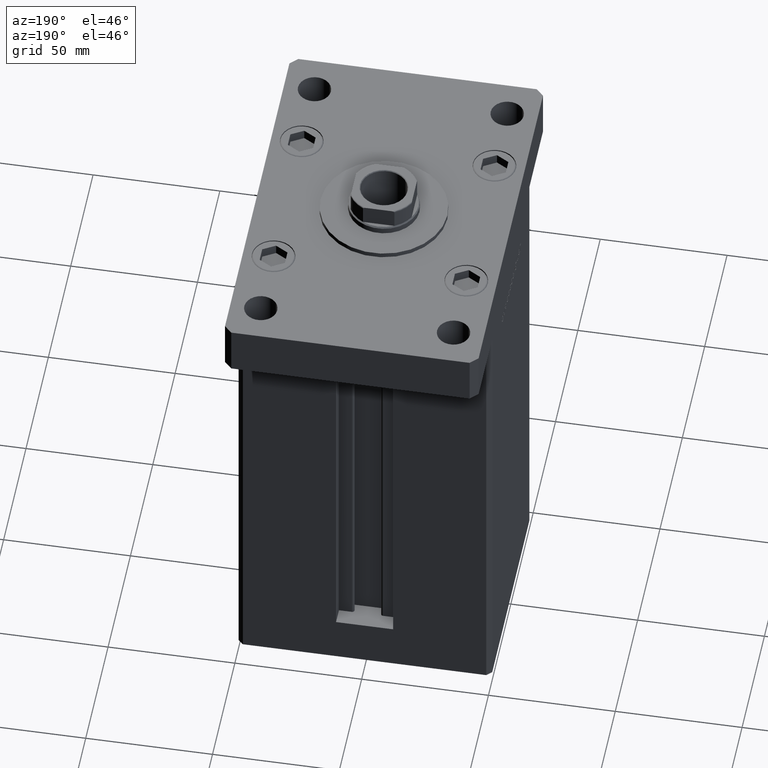
[diagram: clean part render]
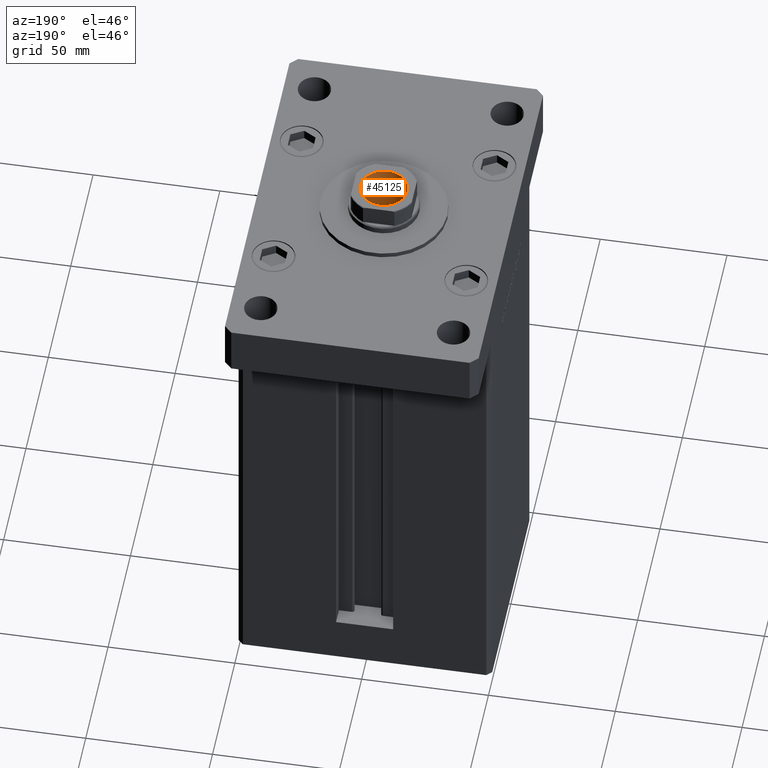
[diagram: same view with one face highlighted and labeled with its STEP entity id]
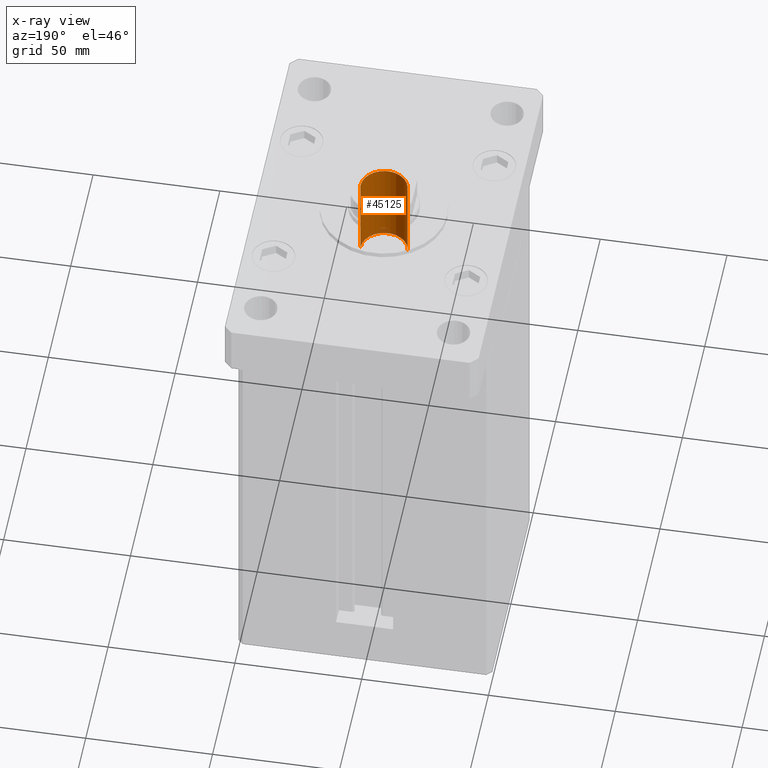
[diagram: x-ray of the same camera — body ghosted, the highlighted face saturated]
A machine part, auxiliary view. The second image highlights one B-rep face of the part: STEP entity #45125.
The next image is the same camera in x-ray: the body ghosted, the highlighted face saturated — about 3% of this face is hidden behind the body in this view.
In plain terms, the highlighted cylindrical surface (edge-blend (fillet) strip) has radius 9.25 mm, axis along (0, 0, 1).
Its self-contained STEP definition (entity closure, byte-faithful):
#1790 = AXIS2_PLACEMENT_3D ( 'NONE', #52300, #14931, #28531 ) ;
#3793 = VERTEX_POINT ( 'NONE', #53673 ) ;
#3910 = ORIENTED_EDGE ( 'NONE', *, *, #53916, .T. ) ;
#3933 = VERTEX_POINT ( 'NONE', #47099 ) ;
#4011 = VECTOR ( 'NONE', #8504, 1000.000000000000000 ) ;
#4820 = ORIENTED_EDGE ( 'NONE', *, *, #42330, .F. ) ;
#5355 = AXIS2_PLACEMENT_3D ( 'NONE', #15889, #24336, #16159 ) ;
#8504 = DIRECTION ( 'NONE',  ( -0.000000000000000000, -0.000000000000000000, 1.000000000000000000 ) ) ;
#9117 = ORIENTED_EDGE ( 'NONE', *, *, #9691, .T. ) ;
#9691 = EDGE_CURVE ( 'NONE', #50435, #3793, #32328, .T. ) ;
#12189 = CARTESIAN_POINT ( 'NONE',  ( 9.249999999999994671, 0.000000000000000000, 150.2500000000000000 ) ) ;
#14907 = AXIS2_PLACEMENT_3D ( 'NONE', #38363, #43003, #35347 ) ;
#14931 = DIRECTION ( 'NONE',  ( -0.000000000000000000, -0.000000000000000000, 1.000000000000000000 ) ) ;
#15889 = CARTESIAN_POINT ( 'NONE',  ( 0.000000000000000000, 0.000000000000000000, 185.2500000000000000 ) ) ;
#16159 = DIRECTION ( 'NONE',  ( 1.000000000000000000, 0.000000000000000000, 0.000000000000000000 ) ) ;
#18529 = CARTESIAN_POINT ( 'NONE',  ( -9.249999999999996447, 1.132798289211301304E-15, 184.9499999999999602 ) ) ;
#24336 = DIRECTION ( 'NONE',  ( -0.000000000000000000, -0.000000000000000000, 1.000000000000000000 ) ) ;
#25287 = CIRCLE ( 'NONE', #1790, 9.249999999999994671 ) ;
#28531 = DIRECTION ( 'NONE',  ( 1.000000000000000000, 0.000000000000000000, 0.000000000000000000 ) ) ;
#30548 = ORIENTED_EDGE ( 'NONE', *, *, #52290, .F. ) ;
#32232 = FACE_OUTER_BOUND ( 'NONE', #37023, .T. ) ;
#32328 = CIRCLE ( 'NONE', #14907, 9.249999999999996447 ) ;
#33781 = VERTEX_POINT ( 'NONE', #12189 ) ;
#35347 = DIRECTION ( 'NONE',  ( 1.000000000000000000, 0.000000000000000000, 0.000000000000000000 ) ) ;
#37023 = EDGE_LOOP ( 'NONE', ( #4820, #3910, #9117, #30548 ) ) ;
#38208 = LINE ( 'NONE', #46675, #4011 ) ;
#38363 = CARTESIAN_POINT ( 'NONE',  ( 0.000000000000000000, 0.000000000000000000, 184.9499999999999602 ) ) ;
#42330 = EDGE_CURVE ( 'NONE', #3933, #33781, #25287, .T. ) ;
#43003 = DIRECTION ( 'NONE',  ( 0.000000000000000000, 0.000000000000000000, 1.000000000000000000 ) ) ;
#45125 = ADVANCED_FACE ( 'NONE', ( #32232 ), #48880, .F. ) ;
#46675 = CARTESIAN_POINT ( 'NONE',  ( -9.249999999999996447, 1.132798289211301304E-15, 185.2500000000000000 ) ) ;
#47099 = CARTESIAN_POINT ( 'NONE',  ( -9.249999999999994671, 1.132798289211300909E-15, 150.2500000000000000 ) ) ;
#48880 = CYLINDRICAL_SURFACE ( 'NONE', #5355, 9.249999999999996447 ) ;
#49186 = LINE ( 'NONE', #53556, #51742 ) ;
#49453 = DIRECTION ( 'NONE',  ( -0.000000000000000000, -0.000000000000000000, 1.000000000000000000 ) ) ;
#50435 = VERTEX_POINT ( 'NONE', #18529 ) ;
#51742 = VECTOR ( 'NONE', #49453, 1000.000000000000000 ) ;
#52290 = EDGE_CURVE ( 'NONE', #33781, #3793, #49186, .T. ) ;
#52300 = CARTESIAN_POINT ( 'NONE',  ( 0.000000000000000000, 0.000000000000000000, 150.2500000000000000 ) ) ;
#53556 = CARTESIAN_POINT ( 'NONE',  ( 9.249999999999996447, 0.000000000000000000, 185.2500000000000000 ) ) ;
#53673 = CARTESIAN_POINT ( 'NONE',  ( 9.249999999999996447, 0.000000000000000000, 184.9499999999999602 ) ) ;
#53916 = EDGE_CURVE ( 'NONE', #3933, #50435, #38208, .T. ) ;